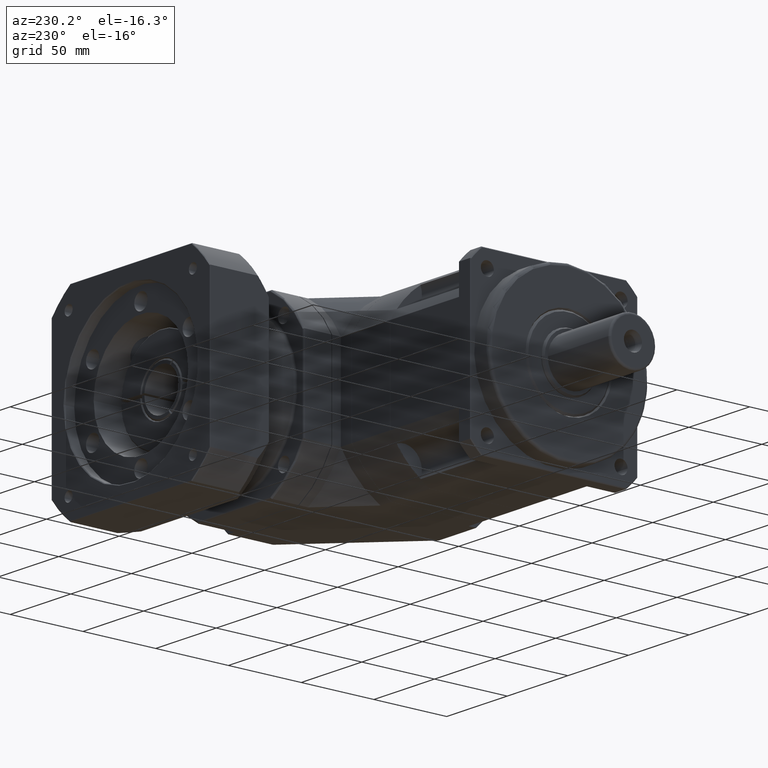
[diagram: clean part render]
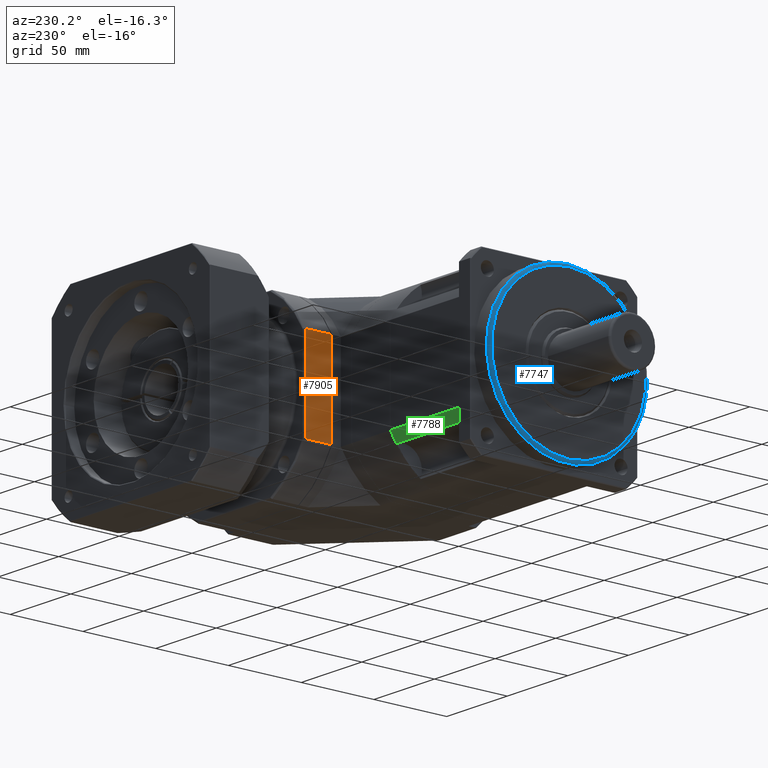
[diagram: same view with three faces highlighted in distinct colors, each labeled with its STEP entity id]
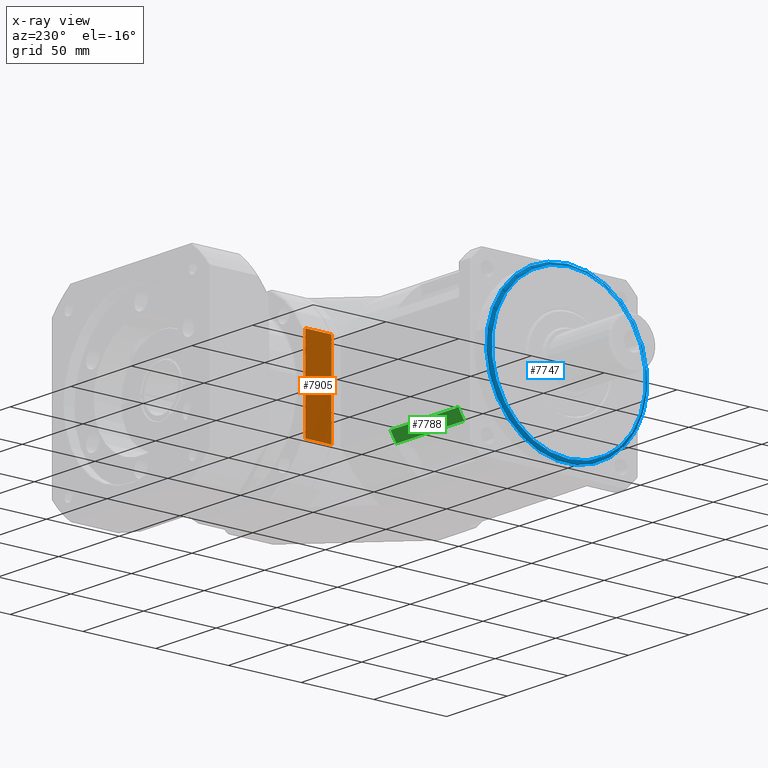
[diagram: x-ray of the same camera — body ghosted, the three highlighted faces saturated]
A machine part, auxiliary view with three faces highlighted in distinct colors.
The next image is the same camera in x-ray (body ghosted, the three faces saturated) — at least one of them is partly hidden behind the body in this view.
Their STEP definitions:

[orange] entity #7905 — the highlighted planar face has unit normal (-1, 0, 0).
#502=LINE('',#13579,#892);
#513=LINE('',#13708,#903);
#515=LINE('',#13717,#905);
#516=LINE('',#13719,#906);
#892=VECTOR('',#10690,60.6217782649107);
#903=VECTOR('',#10745,60.6217782649107);
#905=VECTOR('',#10753,18.);
#906=VECTOR('',#10756,18.);
#1205=PLANE('',#8778);
#2362=FACE_OUTER_BOUND('',#3071,.T.);
#3071=EDGE_LOOP('',(#6860,#6861,#6862,#6863));
#4244=VERTEX_POINT('',#13547);
#4245=VERTEX_POINT('',#13564);
#4256=VERTEX_POINT('',#13700);
#4257=VERTEX_POINT('',#13707);
#5143=EDGE_CURVE('',#4245,#4244,#502,.T.);
#5171=EDGE_CURVE('',#4257,#4256,#513,.T.);
#5175=EDGE_CURVE('',#4245,#4256,#515,.T.);
#5176=EDGE_CURVE('',#4257,#4244,#516,.T.);
#6860=ORIENTED_EDGE('',*,*,#5143,.F.);
#6861=ORIENTED_EDGE('',*,*,#5175,.T.);
#6862=ORIENTED_EDGE('',*,*,#5171,.F.);
#6863=ORIENTED_EDGE('',*,*,#5176,.T.);
#7905=ADVANCED_FACE('',(#2362),#1205,.T.);
#8778=AXIS2_PLACEMENT_3D('',#13718,#10754,#10755);
#10690=DIRECTION('',(7.32006204464666E-15,-4.35262012587569E-15,1.));
#10745=DIRECTION('',(-7.32006204464666E-15,4.35262012587569E-15,-1.));
#10753=DIRECTION('',(-6.41610409092978E-16,-1.,-4.35262012587568E-15));
#10754=DIRECTION('center_axis',(-1.,6.41610409092946E-16,7.32006204464667E-15));
#10755=DIRECTION('ref_axis',(7.105427357601E-15,-4.2632564145606E-15,1.));
#10756=DIRECTION('',(6.41610409092978E-16,1.,4.35262012587568E-15));
#13547=CARTESIAN_POINT('',(103.698546431623,52.4568358032377,77.9266102488774));
#13564=CARTESIAN_POINT('',(103.698546431623,52.4568358032379,17.3048319839667));
#13579=CARTESIAN_POINT('',(103.698546431623,52.4568358032379,18.8657211164221));
#13700=CARTESIAN_POINT('',(103.698546431623,34.4568358032379,17.3048319839666));
#13707=CARTESIAN_POINT('',(103.698546431623,34.4568358032377,77.9266102488774));
#13708=CARTESIAN_POINT('',(103.698546431623,34.4568358032379,18.865721116422));
#13717=CARTESIAN_POINT('',(103.698546431623,33.9568358032379,17.3048319839666));
#13718=CARTESIAN_POINT('Origin',(103.698546431622,33.956835803238,-9.88427888357801));
#13719=CARTESIAN_POINT('',(103.698546431623,33.9568358032377,77.9266102488774));

[blue] entity #7747 — the highlighted toroidal blend (fillet) surface has major radius 53 mm and minor (blend) radius 2 mm.
#114=TOROIDAL_SURFACE('',#8533,53.,2.);
#1832=FACE_BOUND('',#2866,.T.);
#2204=FACE_OUTER_BOUND('',#2865,.T.);
#2865=EDGE_LOOP('',(#6174));
#2866=EDGE_LOOP('',(#6175));
#3527=CIRCLE('',#8534,55.);
#3528=CIRCLE('',#8535,53.);
#4043=VERTEX_POINT('',#12743);
#4044=VERTEX_POINT('',#12745);
#4845=EDGE_CURVE('',#4043,#4043,#3527,.T.);
#4846=EDGE_CURVE('',#4044,#4044,#3528,.T.);
#6174=ORIENTED_EDGE('',*,*,#4845,.T.);
#6175=ORIENTED_EDGE('',*,*,#4846,.T.);
#7747=ADVANCED_FACE('',(#2204,#1832),#114,.T.);
#8533=AXIS2_PLACEMENT_3D('',#12742,#10100,#10101);
#8534=AXIS2_PLACEMENT_3D('',#12744,#10102,#10103);
#8535=AXIS2_PLACEMENT_3D('',#12746,#10104,#10105);
#10100=DIRECTION('center_axis',(-1.,1.21430643318361E-16,-1.36246471463887E-16));
#10101=DIRECTION('ref_axis',(-1.29189588320018E-16,-3.61730847296051E-15,
1.));
#10102=DIRECTION('center_axis',(-1.,1.21430643318361E-16,-1.36246471463887E-16));
#10103=DIRECTION('ref_axis',(1.36246471463888E-16,3.59656965667667E-15,
-1.));
#10104=DIRECTION('center_axis',(1.,-1.21430643318361E-16,1.36246471463887E-16));
#10105=DIRECTION('ref_axis',(1.36246471463888E-16,3.59656965667667E-15,
-1.));
#12742=CARTESIAN_POINT('Origin',(-13.3014535683764,-29.5431641967609,47.6157211164212));
#12743=CARTESIAN_POINT('',(-13.3014535683764,-29.543164196761,102.615721116421));
#12744=CARTESIAN_POINT('Origin',(-13.3014535683764,-29.5431641967609,47.6157211164212));
#12745=CARTESIAN_POINT('',(-15.3014535683764,-29.543164196761,100.615721116421));
#12746=CARTESIAN_POINT('Origin',(-15.3014535683764,-29.5431641967609,47.6157211164212));

[green] entity #7788 — the highlighted cylindrical surface (partial cylindrical patch) has radius 65 mm, axis along (-1, 0, -0).
#101=ELLIPSE('',#8568,91.9238815542503,65.);
#389=LINE('',#13000,#779);
#393=LINE('',#13009,#783);
#779=VECTOR('',#10311,56.);
#783=VECTOR('',#10323,56.5);
#2245=FACE_OUTER_BOUND('',#2923,.T.);
#2923=EDGE_LOOP('',(#6358,#6359,#6360,#6361,#6362));
#3502=CIRCLE('',#8492,65.);
#3545=CIRCLE('',#8573,65.);
#4017=VERTEX_POINT('',#12671);
#4018=VERTEX_POINT('',#12673);
#4074=VERTEX_POINT('',#12838);
#4075=VERTEX_POINT('',#12840);
#4077=VERTEX_POINT('',#12852);
#4817=EDGE_CURVE('',#4017,#4018,#3502,.T.);
#4882=EDGE_CURVE('',#4074,#4075,#101,.F.);
#4887=EDGE_CURVE('',#4077,#4075,#3545,.T.);
#4946=EDGE_CURVE('',#4017,#4077,#389,.T.);
#4951=EDGE_CURVE('',#4018,#4074,#393,.T.);
#6358=ORIENTED_EDGE('',*,*,#4946,.T.);
#6359=ORIENTED_EDGE('',*,*,#4887,.T.);
#6360=ORIENTED_EDGE('',*,*,#4882,.F.);
#6361=ORIENTED_EDGE('',*,*,#4951,.F.);
#6362=ORIENTED_EDGE('',*,*,#4817,.F.);
#7442=CYLINDRICAL_SURFACE('',#8623,65.);
#7788=ADVANCED_FACE('',(#2245),#7442,.T.);
#8492=AXIS2_PLACEMENT_3D('',#12674,#10015,#10016);
#8568=AXIS2_PLACEMENT_3D('',#12841,#10181,#10182);
#8573=AXIS2_PLACEMENT_3D('',#12853,#10192,#10193);
#8623=AXIS2_PLACEMENT_3D('',#13008,#10321,#10322);
#10015=DIRECTION('center_axis',(1.,-1.21430643318361E-16,1.36246471463887E-16));
#10016=DIRECTION('ref_axis',(-1.36246471463888E-16,-3.59656965667667E-15,
1.));
#10181=DIRECTION('center_axis',(0.707106781186554,0.707106781186541,2.74872342034346E-15));
#10182=DIRECTION('ref_axis',(-0.707106781186541,0.707106781186554,2.44681798936101E-15));
#10192=DIRECTION('center_axis',(1.,-1.21430643318361E-16,1.36246471463887E-16));
#10193=DIRECTION('ref_axis',(-1.36246471463888E-16,-3.59656965667667E-15,
1.));
#10311=DIRECTION('',(-1.,1.21430643318361E-16,-1.36246471463887E-16));
#10321=DIRECTION('center_axis',(-1.,1.21430643318361E-16,-1.36246471463887E-16));
#10322=DIRECTION('ref_axis',(-1.36246471463888E-16,-3.59656965667667E-15,
1.));
#10323=DIRECTION('',(-1.,1.21430643318361E-16,-1.36246471463887E-16));
#12671=CARTESIAN_POINT('',(62.6985464316236,23.9077190467229,10.6291954551555));
#12673=CARTESIAN_POINT('',(62.6985464316236,27.9568358032393,17.3048319839661));
#12674=CARTESIAN_POINT('Origin',(62.6985464316236,-29.5431641967609,47.6157211164212));
#12838=CARTESIAN_POINT('',(6.1985464316236,27.9568358032392,17.304831983966));
#12840=CARTESIAN_POINT('',(6.6985464316236,27.4568358032392,16.3747224127947));
#12841=CARTESIAN_POINT('Origin',(63.6985464316226,-29.5431641967609,47.6157211164212));
#12852=CARTESIAN_POINT('',(6.69854643162361,23.9077190467229,10.6291954551555));
#12853=CARTESIAN_POINT('Origin',(6.69854643162359,-29.5431641967609,47.6157211164212));
#13000=CARTESIAN_POINT('',(62.6985464316236,23.9077190467229,10.6291954551555));
#13008=CARTESIAN_POINT('Origin',(62.6985464316236,-29.5431641967609,47.6157211164212));
#13009=CARTESIAN_POINT('',(62.6985464316236,27.9568358032392,17.3048319839661));